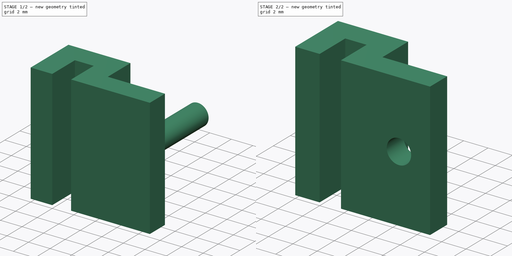
[diagram: build sequence overview — one tinted view per stage of 2, left to right]
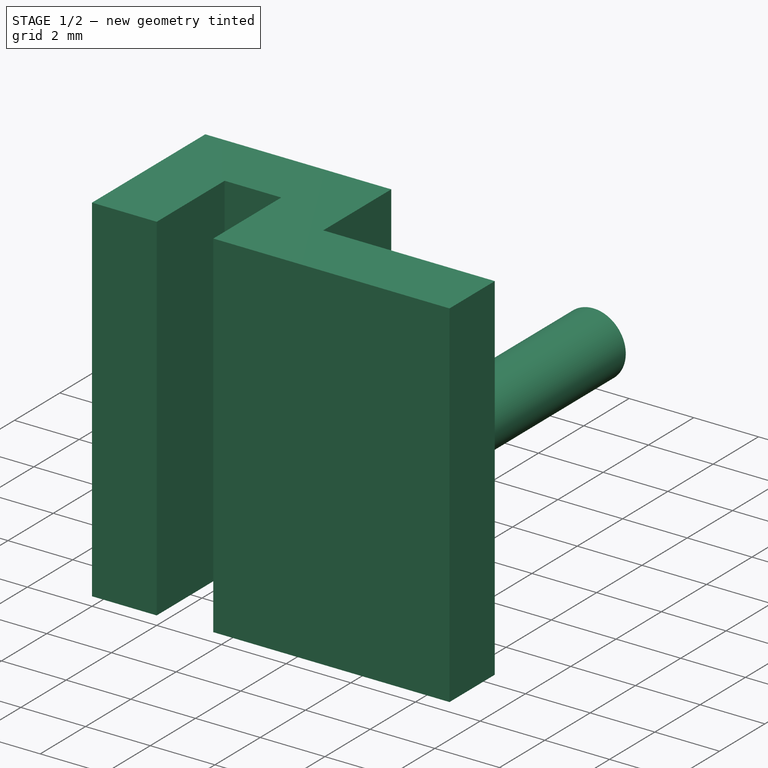
[diagram: stage 1 of 2 — iso view after this stage's code; geometry added in this stage tinted green]
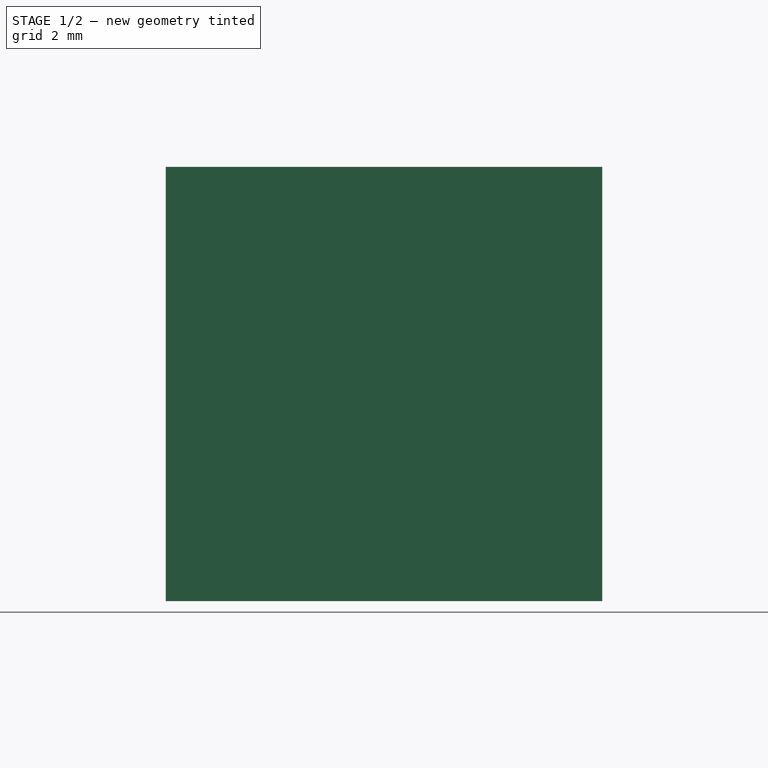
[diagram: stage 1 of 2 — front view after this stage's code; geometry added in this stage tinted green]
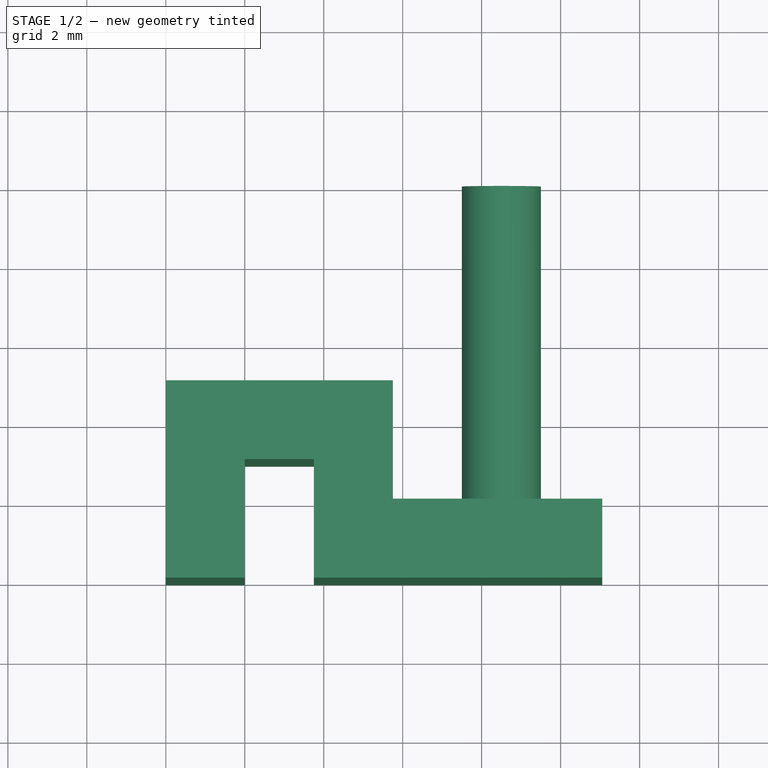
[diagram: stage 1 of 2 — top view after this stage's code; geometry added in this stage tinted green]
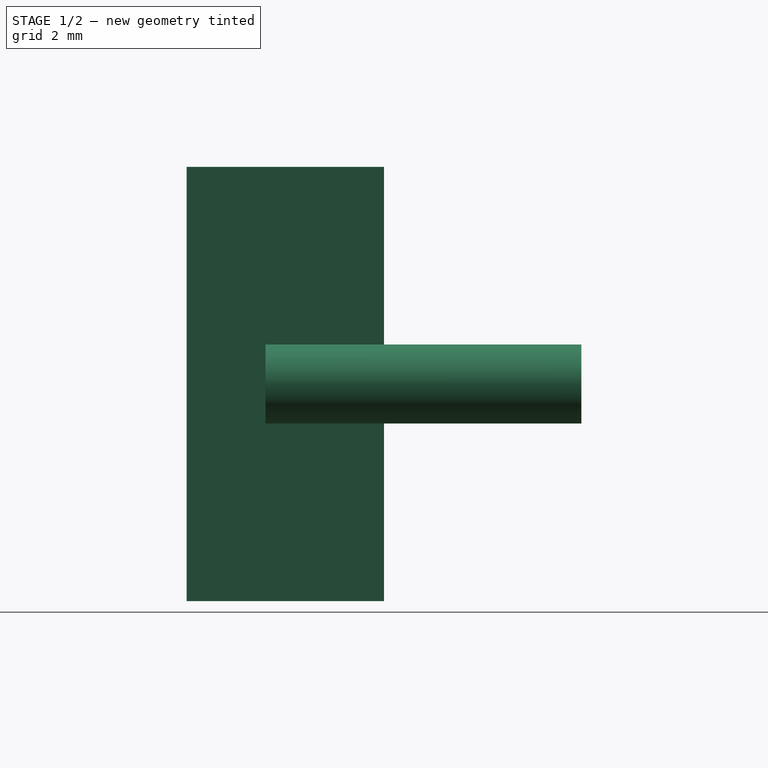
[diagram: stage 1 of 2 — right view after this stage's code; geometry added in this stage tinted green]
FCSTD DOCUMENT  (FreeCAD 0.16R6706 (Git))
Label: jig
License: All rights reserved
LicenseURL: http://en.wikipedia.org/wiki/All_rights_reserved
objects: Sketcher::SketchObject×1, Part::Extrusion×1, Part::Cylinder×1, Part::Cut×1
note: 4 computed .brp shape members not serialized (recipe doc carries the construction recipe); baked Part::Feature solids carry a one-line shape summary decoded from their .brp

FEATURE [Sketcher::SketchObject] Sketch
  sketch-geometry (10):
    g0: LineSegment StartX=-2 StartY=0 StartZ=0 EndX=-2 EndY=5 EndZ=0
    g1: LineSegment StartX=-2 StartY=5 StartZ=0 EndX=3.75 EndY=5 EndZ=0
    g2: LineSegment StartX=3.75 StartY=5 StartZ=0 EndX=3.75 EndY=2 EndZ=0
    g3: LineSegment StartX=3.75 StartY=2 StartZ=0 EndX=9.05313 EndY=2 EndZ=0
    g4: LineSegment StartX=9.05313 StartY=2 StartZ=0 EndX=9.05313 EndY=0 EndZ=0
    g5: LineSegment StartX=9.05313 StartY=0 StartZ=0 EndX=1.75 EndY=0 EndZ=0
    g6: LineSegment StartX=1.75 StartY=0 StartZ=0 EndX=1.75 EndY=3 EndZ=0
    g7: LineSegment StartX=1.75 StartY=3 StartZ=0 EndX=0 EndY=3 EndZ=0
    g8: LineSegment StartX=0 StartY=3 StartZ=0 EndX=0 EndY=0 EndZ=0
    g9: LineSegment StartX=0 StartY=0 StartZ=0 EndX=-2 EndY=0 EndZ=0
  constraints (28):
    c: Coincident(g0,g1)
    c: Coincident(g1,g2)
    c: Coincident(g2,g3)
    c: Coincident(g3,g4)
    c: Coincident(g5,g6)
    c: Coincident(g6,g7)
    c: Coincident(g7,g8)
    c: Coincident(g8,g9)
    c: Parallel(g8,g6)
    c: Parallel(g5,g3)
    c: Parallel(g3,g1)
    c: Coincident(g4,g5)
    c: DistanceX(g7,g7) = 1.75
    c: Coincident(g8,g-1)
    c: Coincident(g0,g9)
    c: Perpendicular(g0,g9)
    c: Perpendicular(g6,g5)
    c: DistanceX(g0,g-1) = 2
    c: DistanceX(g0,g1) = 5.75
    c: DistanceY(g0,g0) = 5
    c: Parallel(g0,g2)
    c: Parallel(g1,g9)
    c: Parallel(g9,g7)
    c: Parallel(g4,g0)
    c: DistanceY(g4,g3) = 2
    c: Parallel(g5,g-1)
    c: DistanceY(g8,g8) = 3
    c: DistanceY(g2,g2) = 3
FEATURE [Part::Extrusion] Extrude
  Base = -> Sketch
  Dir = (0,0,11)
  Solid = true
FEATURE [Part::Cylinder] Cylinder
  Angle = 360
  Height = 10
  Placement = pos=(6.5,0,5.5) rot=(-1,0,0;1.5708rad)
  Radius = 1
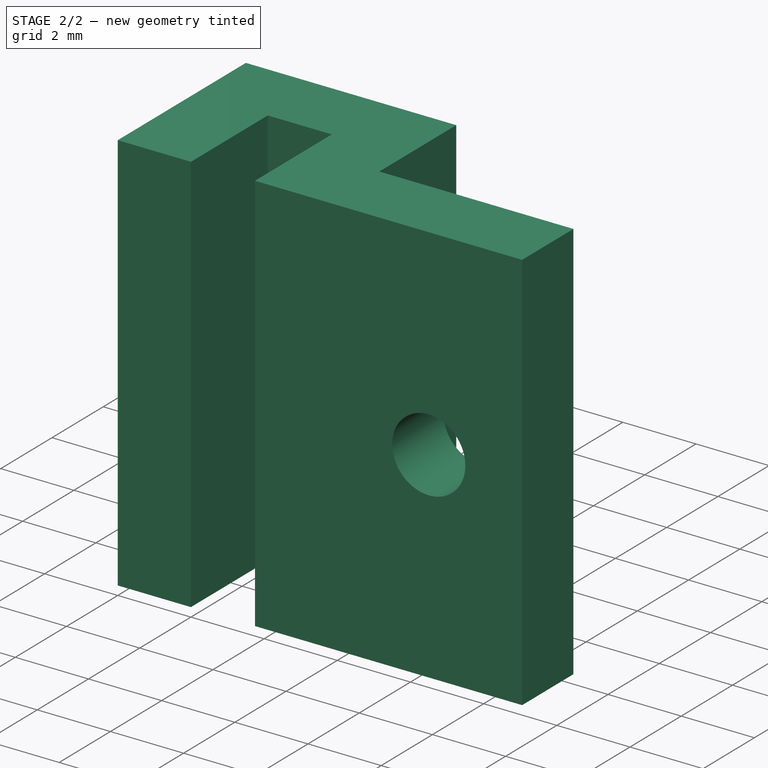
[diagram: stage 2 of 2 — iso view after this stage's code; geometry added in this stage tinted green]
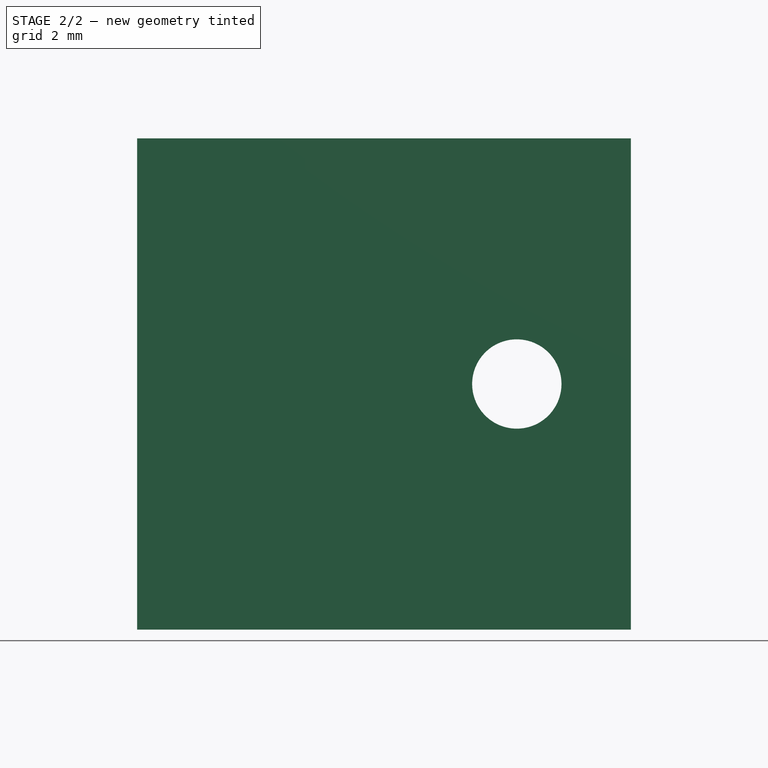
[diagram: stage 2 of 2 — front view after this stage's code; geometry added in this stage tinted green]
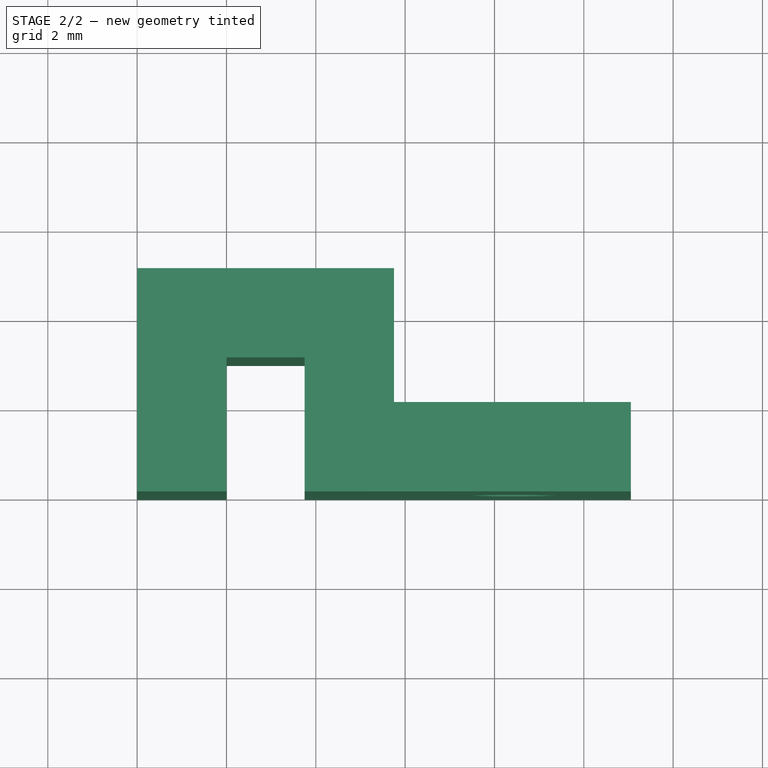
[diagram: stage 2 of 2 — top view after this stage's code; geometry added in this stage tinted green]
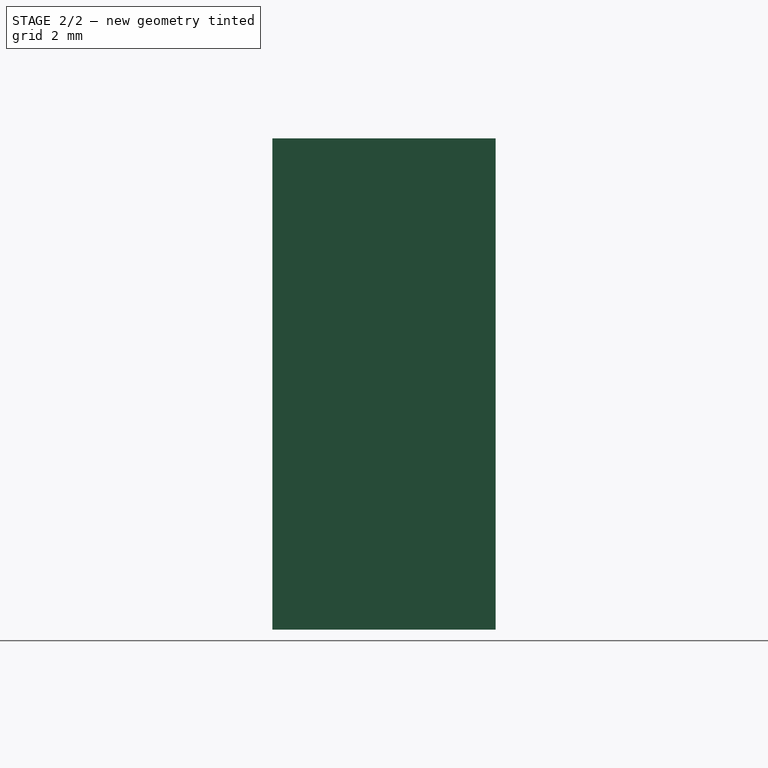
[diagram: stage 2 of 2 — right view after this stage's code; geometry added in this stage tinted green]
FEATURE [Part::Cut] Cut
  Base = -> Extrude
  Tool = -> Cylinder
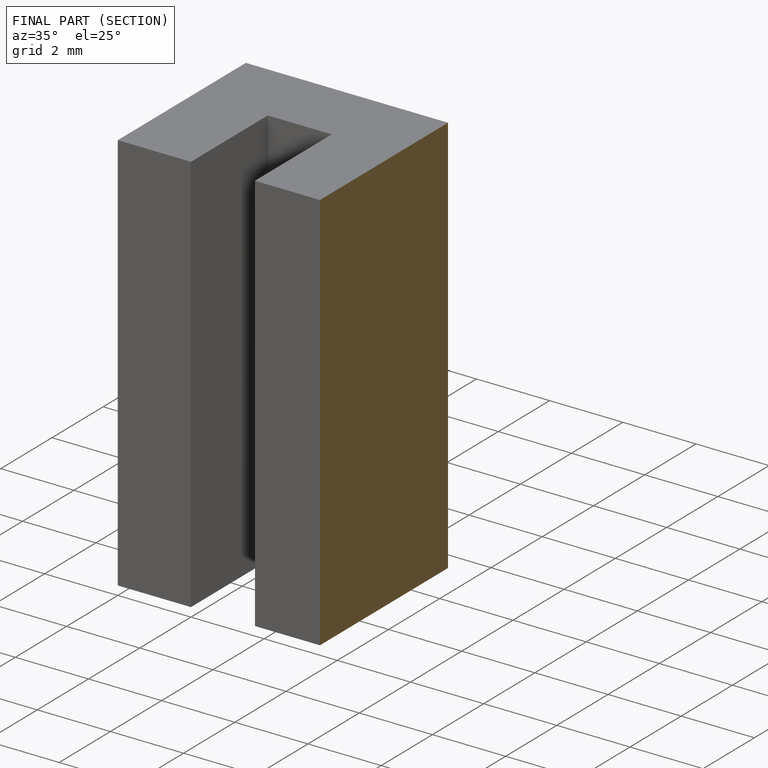
[diagram: finished part — half-section view (interior)]
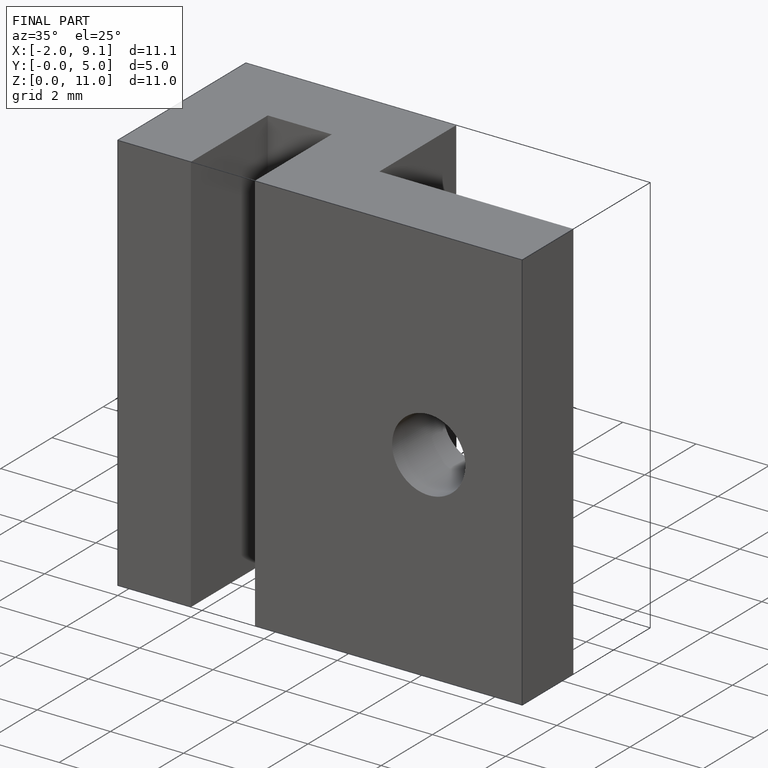
[diagram: finished part — iso view with bounding-box wireframe]
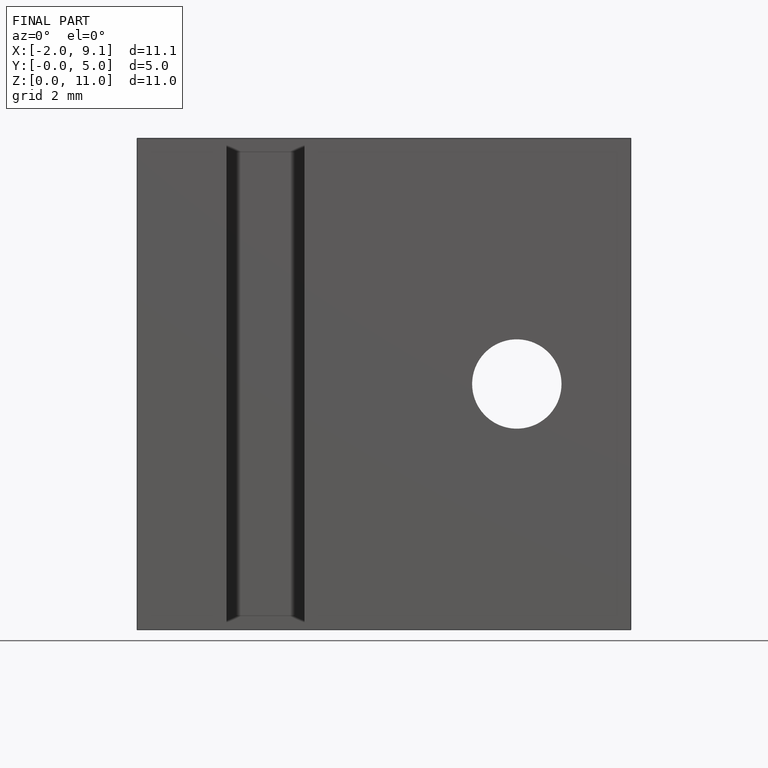
[diagram: finished part — front view with bounding-box wireframe]
